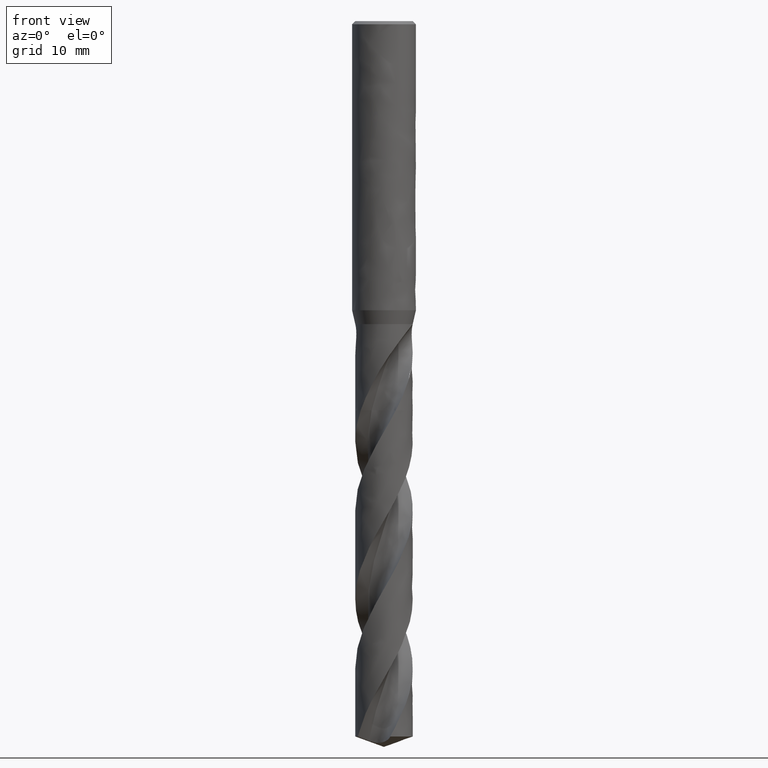
[diagram: clean part render]
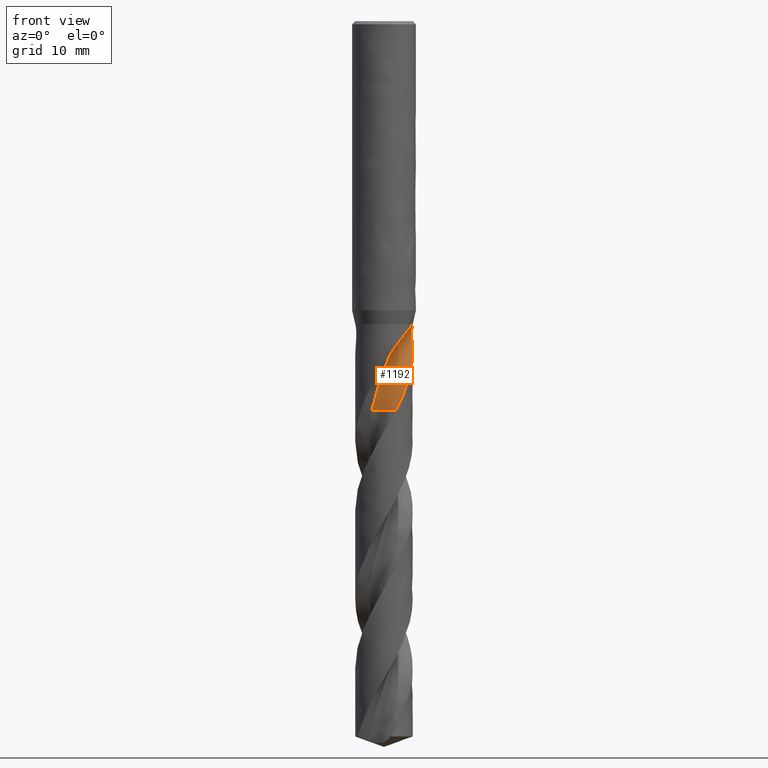
[diagram: same view with one face highlighted and labeled with its STEP entity id]
A machine part, front view. The second image highlights one B-rep face of the part: STEP entity #1192.
In plain terms, the highlighted face is a freeform B-spline surface patch.
Its self-contained STEP definition (entity closure, byte-faithful):
#380 = EDGE_CURVE('', #381, #383, #385, .T.);
#381 = VERTEX_POINT('', #382);
#382 = CARTESIAN_POINT('', (3.60124740460778, -0.15513122104007, -37.98));
#383 = VERTEX_POINT('', #384);
#384 = CARTESIAN_POINT('', (3.59971137676077, 0.0455851293631343, -38.));
#385 = B_SPLINE_CURVE_WITH_KNOTS('', 3, (#386, #387, #388, #389, #390, #391, #392, #393, #394, #395), .UNSPECIFIED., .F., .U., (4, 3, 3, 4), (0., 0.131136358345185, 0.157053486987443, 0.20204320221512), .UNSPECIFIED.);
#386 = CARTESIAN_POINT('', (3.60124740460993, -0.155131220990469, -37.98));
#387 = CARTESIAN_POINT('', (3.60311527526153, -0.111459066935836, -37.980058362043));
#388 = CARTESIAN_POINT('', (3.60360952270209, -0.0676024250436709, -37.9826339362335));
#389 = CARTESIAN_POINT('', (3.60262031122507, -0.0242599004705057, -37.9882193109701));
#390 = CARTESIAN_POINT('', (3.6024248084566, -0.0156939024573071, -37.9893231762703));
#391 = CARTESIAN_POINT('', (3.60217161281427, -0.0071433258072321, -37.9905449051908));
#392 = CARTESIAN_POINT('', (3.60186029604204, 0.00138500222784765, -37.9918879482611));
#393 = CARTESIAN_POINT('', (3.60131987919566, 0.0161893833366736, -37.9942193456203));
#394 = CARTESIAN_POINT('', (3.60060383056858, 0.0309358341315839, -37.9969179812704));
#395 = CARTESIAN_POINT('', (3.59971137676077, 0.0455851293631412, -38.));
#456 = VERTEX_POINT('', #457);
#457 = CARTESIAN_POINT('', (3.57980735671333, -0.38076145921187, -38.));
#464 = EDGE_CURVE('', #465, #456, #467, .T.);
#465 = VERTEX_POINT('', #466);
#466 = CARTESIAN_POINT('', (3.60111464815104, -0.15818298204183, -37.98));
#467 = B_SPLINE_CURVE_WITH_KNOTS('', 3, (#468, #469, #470, #471, #472, #473, #474), .UNSPECIFIED., .F., .U., (4, 3, 4), (0., 0.132107174796412, 0.22474016021993), .UNSPECIFIED.);
#468 = CARTESIAN_POINT('', (3.60111464814985, -0.158182982069038, -37.98));
#469 = CARTESIAN_POINT('', (3.59916874368128, -0.20217565282109, -37.9800587043408));
#470 = CARTESIAN_POINT('', (3.59582825375448, -0.246169494657713, -37.982652016962));
#471 = CARTESIAN_POINT('', (3.59124476467539, -0.289718355296562, -37.9873031926434));
#472 = CARTESIAN_POINT('', (3.5880308417548, -0.320254629946187, -37.9905645771197));
#473 = CARTESIAN_POINT('', (3.58420085577503, -0.350636012580257, -37.9948439714934));
#474 = CARTESIAN_POINT('', (3.57980735671333, -0.38076145921186, -38.));
#476 = EDGE_CURVE('', #381, #465, #477, .T.);
#477 = LINE('', #478, #479);
#478 = CARTESIAN_POINT('', (3.60124740460777, -0.15513122104007, -37.98));
#479 = VECTOR('', #480, 0.00305464719545004);
#480 = DIRECTION('', (-0.000132756456736605, -0.00305176100176038, 0.));
#1137 = VERTEX_POINT('', #1138);
#1138 = CARTESIAN_POINT('', (3.45348750932016, -1.01657465194132, -43.3727678921443));
#1139 = VERTEX_POINT('', #1140);
#1140 = CARTESIAN_POINT('', (3.06370827947733, -1.89042100555989, -45.0522342601964));
#1171 = EDGE_CURVE('', #1139, #1137, #1172, .T.);
#1172 = B_SPLINE_CURVE_WITH_KNOTS('', 3, (#1173, #1174, #1175, #1176, #1177, #1178), .UNSPECIFIED., .F., .U., (4, 1, 1, 4), (45.9977657398036, 46.43625, 47.099625, 47.6772321078557), .UNSPECIFIED.);
#1173 = CARTESIAN_POINT('', (3.06370827947733, -1.89042100555989, -45.0522342601964));
#1174 = CARTESIAN_POINT('', (3.09754633994347, -1.81307925647576, -44.9060728401309));
#1175 = CARTESIAN_POINT('', (3.17196093515906, -1.61463059152777, -44.5387864200655));
#1176 = CARTESIAN_POINT('', (3.24955677938932, -1.307708570142, -43.9789642973814));
#1177 = CARTESIAN_POINT('', (3.37962291056814, -1.10929867842429, -43.5653035947629));
#1178 = CARTESIAN_POINT('', (3.45348750932016, -1.01657465194132, -43.3727678921443));
#1192 = ADVANCED_FACE('', (#1193), #1502, .T.);
#1193 = FACE_OUTER_BOUND('', #1194, .T.);
#1194 = EDGE_LOOP('', (#1195, #1272, #1312, #1313, #1425, #1426, #1427, #1428, #1482));
#1195 = ORIENTED_EDGE('', *, *, #1196, .T.);
#1196 = EDGE_CURVE('', #1197, #1199, #1201, .T.);
#1197 = VERTEX_POINT('', #1198);
#1198 = CARTESIAN_POINT('', (-1.55339180861941, -1.4941882744044, -48.8));
#1199 = VERTEX_POINT('', #1200);
#1200 = CARTESIAN_POINT('', (1.4856584523893, -3.27914912177599, -48.8));
#1201 = B_SPLINE_CURVE_WITH_KNOTS('', 3, (#1202, #1203, #1204, #1205, #1206, #1207, #1208, #1209, #1210, #1211, #1212, #1213, #1214, #1215, #1216, #1217, #1218, #1219, #1220, #1221, #1222, #1223, #1224, #1225, #1226, #1227, #1228, #1229, #1230, #1231, #1232, #1233, #1234, #1235, #1236, #1237, #1238, #1239, #1240, #1241, #1242, #1243, #1244, #1245, #1246, #1247, #1248, #1249, #1250, #1251, #1252, #1253, #1254, #1255, #1256, #1257, #1258, #1259, #1260, #1261, #1262, #1263, #1264, #1265, #1266, #1267, #1268, #1269, #1270, #1271), .UNSPECIFIED., .F., .U., (4, 3, 3, 3, 3, 3, 3, 3, 3, 3, 3, 3, 3, 3, 3, 3, 3, 3, 3, 3, 3, 3, 3, 4), (0., 0.198161325395539, 0.396102672322728, 0.593829154784423, 0.791344830634001, 0.988652777909094, 1.18575515176298, 1.38265322425847, 1.57934740858128, 1.77583726862783, 1.97212151438407, 2.05950590213114, 2.08544527419575, 2.28359250977276, 2.4815201234749, 2.67923315981456, 2.87673561261368, 3.07403050002724, 3.27111992033154, 3.46800509069301, 3.66468637043387, 3.86116326971416, 4.05743444401378, 4.12062223334956), .UNSPECIFIED.);
#1202 = CARTESIAN_POINT('', (-1.55339180861941, -1.4941882744044, -48.8));
#1203 = CARTESIAN_POINT('', (-1.49316110768937, -1.4670706809521, -48.8));
#1204 = CARTESIAN_POINT('', (-1.43162071137666, -1.4426930611038, -48.8));
#1205 = CARTESIAN_POINT('', (-1.36915842104998, -1.42120903223783, -48.8));
#1206 = CARTESIAN_POINT('', (-1.30676546997972, -1.39974885274689, -48.8));
#1207 = CARTESIAN_POINT('', (-1.2433218357042, -1.38113082762273, -48.8));
#1208 = CARTESIAN_POINT('', (-1.17922642725123, -1.36547201980458, -48.8));
#1209 = CARTESIAN_POINT('', (-1.11520059408353, -1.34983020955376, -48.8));
#1210 = CARTESIAN_POINT('', (-1.05039043311696, -1.33710845253099, -48.8));
#1211 = CARTESIAN_POINT('', (-0.985202562755464, -1.32738656493265, -48.8));
#1212 = CARTESIAN_POINT('', (-0.92008419261433, -1.31767504235048, -48.8));
#1213 = CARTESIAN_POINT('', (-0.854452954070395, -1.31093670518178, -48.8));
#1214 = CARTESIAN_POINT('', (-0.788719740783478, -1.3072137397403, -48.8));
#1215 = CARTESIAN_POINT('', (-0.723055659562326, -1.30349468976681, -48.8));
#1216 = CARTESIAN_POINT('', (-0.657153002109911, -1.30277691013836, -48.8));
#1217 = CARTESIAN_POINT('', (-0.591423495299678, -1.30506488518342, -48.8));
#1218 = CARTESIAN_POINT('', (-0.525762471486584, -1.30735047640734, -48.8));
#1219 = CARTESIAN_POINT('', (-0.460137712150983, -1.31264030149708, -48.8));
#1220 = CARTESIAN_POINT('', (-0.394958355441786, -1.32090138099081, -48.8));
#1221 = CARTESIAN_POINT('', (-0.329846558705893, -1.32915389767666, -48.8));
#1222 = CARTESIAN_POINT('', (-0.265044137427836, -1.34038862302187, -48.8));
#1223 = CARTESIAN_POINT('', (-0.200954267083361, -1.35453565893243, -48.8));
#1224 = CARTESIAN_POINT('', (-0.136930761870784, -1.3686680455716, -48.8));
#1225 = CARTESIAN_POINT('', (-0.073485759959988, -1.38573596510345, -48.8));
#1226 = CARTESIAN_POINT('', (-0.0110131756951099, -1.40563344703187, -48.8));
#1227 = CARTESIAN_POINT('', (0.051394512570887, -1.4255102596222, -48.8));
#1228 = CARTESIAN_POINT('', (0.112960762760195, -1.44825181933447, -48.8));
#1229 = CARTESIAN_POINT('', (0.173304117747931, -1.47371722218385, -48.8));
#1230 = CARTESIAN_POINT('', (0.233584327206896, -1.4991559770895, -48.8));
#1231 = CARTESIAN_POINT('', (0.292768505142248, -1.52736532150806, -48.8));
#1232 = CARTESIAN_POINT('', (0.350490719330195, -1.55817083875428, -48.8));
#1233 = CARTESIAN_POINT('', (0.376188249597003, -1.57188524183039, -48.8));
#1234 = CARTESIAN_POINT('', (0.401613526703004, -1.58612243366221, -48.8));
#1235 = CARTESIAN_POINT('', (0.426735354856261, -1.60086494578823, -48.8));
#1236 = CARTESIAN_POINT('', (0.434192573064355, -1.60524114521084, -48.8));
#1237 = CARTESIAN_POINT('', (0.441623649665426, -1.60966219888873, -48.8));
#1238 = CARTESIAN_POINT('', (0.449027781032012, -1.61412762871082, -48.8));
#1239 = CARTESIAN_POINT('', (0.505586905072622, -1.64823842263076, -48.8));
#1240 = CARTESIAN_POINT('', (0.560637660016448, -1.68498454405395, -48.8));
#1241 = CARTESIAN_POINT('', (0.613833188703467, -1.72413446744849, -48.8));
#1242 = CARTESIAN_POINT('', (0.666969756680231, -1.76324099796121, -48.8));
#1243 = CARTESIAN_POINT('', (0.718366630117579, -1.80482798925381, -48.8));
#1244 = CARTESIAN_POINT('', (0.767700690129672, -1.84863399463908, -48.8));
#1245 = CARTESIAN_POINT('', (0.816981266081204, -1.89239250904056, -48.8));
#1246 = CARTESIAN_POINT('', (0.864306611244822, -1.93845676870171, -48.8));
#1247 = CARTESIAN_POINT('', (0.909379847122083, -1.98653780608956, -48.8));
#1248 = CARTESIAN_POINT('', (0.954405075635892, -2.03456763251391, -48.8));
#1249 = CARTESIAN_POINT('', (0.997276998767196, -2.08471020556963, -48.8));
#1250 = CARTESIAN_POINT('', (1.03772724665259, -2.13665164254517, -48.8));
#1251 = CARTESIAN_POINT('', (1.07813498331254, -2.18853849161945, -48.8));
#1252 = CARTESIAN_POINT('', (1.11621032433676, -2.24232851372493, -48.8));
#1253 = CARTESIAN_POINT('', (1.15171542545997, -2.29768570009732, -48.8));
#1254 = CARTESIAN_POINT('', (1.18718355081261, -2.35298523631359, -48.8));
#1255 = CARTESIAN_POINT('', (1.22016053493028, -2.40996363325333, -48.8));
#1256 = CARTESIAN_POINT('', (1.25044080949105, -2.46826570520871, -48.8));
#1257 = CARTESIAN_POINT('', (1.28068970365434, -2.52650735689979, -48.8));
#1258 = CARTESIAN_POINT('', (1.30831024242984, -2.58619076730771, -48.8));
#1259 = CARTESIAN_POINT('', (1.33313060404683, -2.64694465803916, -48.8));
#1260 = CARTESIAN_POINT('', (1.35792526215896, -2.70763563317131, -48.8));
#1261 = CARTESIAN_POINT('', (1.37997688582691, -2.76952052076602, -48.8));
#1262 = CARTESIAN_POINT('', (1.39914857990326, -2.83221514318, -48.8));
#1263 = CARTESIAN_POINT('', (1.41830035180059, -2.89484461676121, -48.8));
#1264 = CARTESIAN_POINT('', (1.43461775775874, -2.95841153712729, -48.8));
#1265 = CARTESIAN_POINT('', (1.44799971039785, -3.0225221031163, -48.8));
#1266 = CARTESIAN_POINT('', (1.46136765120169, -3.08656554088312, -48.8));
#1267 = CARTESIAN_POINT('', (1.47183385699355, -3.15128352684828, -48.8));
#1268 = CARTESIAN_POINT('', (1.47933362445583, -3.21627596679586, -48.8));
#1269 = CARTESIAN_POINT('', (1.48174810904923, -3.23719971486269, -48.8));
#1270 = CARTESIAN_POINT('', (1.48385679949123, -3.25816192008101, -48.8));
#1271 = CARTESIAN_POINT('', (1.48565842112159, -3.27914912446012, -48.8));
#1272 = ORIENTED_EDGE('', *, *, #1273, .F.);
#1273 = EDGE_CURVE('', #1139, #1199, #1274, .T.);
#1274 = B_SPLINE_CURVE_WITH_KNOTS('', 3, (#1275, #1276, #1277, #1278, #1279, #1280, #1281, #1282, #1283, #1284, #1285, #1286, #1287, #1288, #1289, #1290, #1291, #1292, #1293, #1294, #1295, #1296, #1297, #1298, #1299, #1300, #1301, #1302, #1303, #1304, #1305, #1306, #1307, #1308, #1309, #1310, #1311), .UNSPECIFIED., .F., .U., (4, 3, 3, 3, 3, 3, 3, 3, 3, 3, 3, 3, 4), (0., 0.295635985396997, 0.739058378714352, 1.18245643843562, 1.62579449452477, 1.82283654574442, 2.11839024996806, 2.41394728722308, 2.61098054669025, 3.05419718392645, 3.34969436634898, 4.01421400226268, 4.31228855287665), .UNSPECIFIED.);
#1275 = CARTESIAN_POINT('', (3.06370827947733, -1.89042100555989, -45.0522342601964));
#1276 = CARTESIAN_POINT('', (3.03903338288143, -1.93041034379394, -45.1388551818493));
#1277 = CARTESIAN_POINT('', (3.01347780120759, -1.97007507975757, -45.2253804332464));
#1278 = CARTESIAN_POINT('', (2.98703554562784, -2.00938265374117, -45.3117916796775));
#1279 = CARTESIAN_POINT('', (2.947374987262, -2.0683398152244, -45.4413993174304));
#1280 = CARTESIAN_POINT('', (2.9057141178873, -2.1264980295894, -45.5707769248647));
#1281 = CARTESIAN_POINT('', (2.86210677925828, -2.18365399826158, -45.6999227409284));
#1282 = CARTESIAN_POINT('', (2.81850183365988, -2.24080683039786, -45.8290614698847));
#1283 = CARTESIAN_POINT('', (2.77294061981331, -2.29697058509164, -45.9579966447544));
#1284 = CARTESIAN_POINT('', (2.72549709102988, -2.35194932062538, -46.0867254256621));
#1285 = CARTESIAN_POINT('', (2.67805998262648, -2.40692061606383, -46.2154367861182));
#1286 = CARTESIAN_POINT('', (2.62873172844603, -2.46071818787956, -46.3439722814074));
#1287 = CARTESIAN_POINT('', (2.57760096496415, -2.51316001587996, -46.4723242840722));
#1288 = CARTESIAN_POINT('', (2.55487584498287, -2.53646783982374, -46.5293704625715));
#1289 = CARTESIAN_POINT('', (2.53179293449801, -2.55951004813526, -46.5863844037391));
#1290 = CARTESIAN_POINT('', (2.50836078808814, -2.58227151105027, -46.6433651244886));
#1291 = CARTESIAN_POINT('', (2.47321368305913, -2.61641262273908, -46.7288334952379));
#1292 = CARTESIAN_POINT('', (2.43727660642795, -2.64992531709488, -46.8142340350793));
#1293 = CARTESIAN_POINT('', (2.4006064297688, -2.68273904235069, -46.8995823477541));
#1294 = CARTESIAN_POINT('', (2.3639358395711, -2.7155531376549, -46.9849316229227));
#1295 = CARTESIAN_POINT('', (2.32652801531215, -2.74767135678469, -47.070237678052));
#1296 = CARTESIAN_POINT('', (2.28847100038685, -2.77901070174053, -47.1555342482093));
#1297 = CARTESIAN_POINT('', (2.26310027070988, -2.79990309308254, -47.2123972530477));
#1298 = CARTESIAN_POINT('', (2.23744231797189, -2.82044868431367, -47.2692613064478));
#1299 = CARTESIAN_POINT('', (2.21152418528839, -2.84062682833992, -47.3261353792881));
#1300 = CARTESIAN_POINT('', (2.15322261913409, -2.88601657200638, -47.4540708120082));
#1301 = CARTESIAN_POINT('', (2.09357885084248, -2.92956851858169, -47.5820667086548));
#1302 = CARTESIAN_POINT('', (2.03268167599991, -2.9712295778102, -47.7100615000785));
#1303 = CARTESIAN_POINT('', (1.99208089057886, -2.99900544311961, -47.7953969704848));
#1304 = CARTESIAN_POINT('', (1.95091663935712, -3.02594522730658, -47.8807424490231));
#1305 = CARTESIAN_POINT('', (1.9092088251173, -3.05203565871931, -47.9660759863926));
#1306 = CARTESIAN_POINT('', (1.81541550598585, -3.11070831285794, -48.1579756543324));
#1307 = CARTESIAN_POINT('', (1.71884224107608, -3.16509561734494, -48.3498945849978));
#1308 = CARTESIAN_POINT('', (1.6200065647208, -3.21489948991588, -48.541770151366));
#1309 = CARTESIAN_POINT('', (1.57567318731245, -3.23723933682651, -48.627837168995));
#1310 = CARTESIAN_POINT('', (1.5308702659685, -3.25866535891637, -48.7139281927228));
#1311 = CARTESIAN_POINT('', (1.4856584523893, -3.27914912177599, -48.8));
#1312 = ORIENTED_EDGE('', *, *, #1171, .T.);
#1313 = ORIENTED_EDGE('', *, *, #1314, .T.);
#1314 = EDGE_CURVE('', #1137, #383, #1315, .T.);
#1315 = B_SPLINE_CURVE_WITH_KNOTS('', 3, (#1316, #1317, #1318, #1319, #1320, #1321, #1322, #1323, #1324, #1325, #1326, #1327, #1328, #1329, #1330, #1331, #1332, #1333, #1334, #1335, #1336, #1337, #1338, #1339, #1340, #1341, #1342, #1343, #1344, #1345, #1346, #1347, #1348, #1349, #1350, #1351, #1352, #1353, #1354, #1355, #1356, #1357, #1358, #1359, #1360, #1361, #1362, #1363, #1364, #1365, #1366, #1367, #1368, #1369, #1370, #1371, #1372, #1373, #1374, #1375, #1376, #1377, #1378, #1379, #1380, #1381, #1382, #1383, #1384, #1385, #1386, #1387, #1388, #1389, #1390, #1391, #1392, #1393, #1394, #1395, #1396, #1397, #1398, #1399, #1400, #1401, #1402, #1403, #1404, #1405, #1406, #1407, #1408, #1409, #1410, #1411, #1412, #1413, #1414, #1415, #1416, #1417, #1418, #1419, #1420, #1421, #1422, #1423, #1424), .UNSPECIFIED., .F., .U., (4, 3, 3, 3, 3, 3, 3, 3, 3, 3, 3, 3, 3, 3, 3, 3, 3, 3, 3, 3, 3, 3, 3, 3, 3, 3, 3, 3, 3, 3, 3, 3, 3, 3, 3, 3, 4), (0., 0.131307096041016, 0.426573275159126, 0.72166918210154, 0.918414868978559, 1.11510087061255, 1.31172997177353, 1.50830386174755, 1.70482445343302, 1.83593392592466, 1.87483867487829, 2.16974128983139, 2.46439770129819, 2.75882509157484, 3.05305410529972, 3.34714371914707, 3.64116460524708, 3.93523915499994, 4.13169385243683, 4.32826559424835, 4.52502269130243, 4.7220566444108, 4.91949069915633, 4.97793549827289, 5.10980774858142, 5.24192539530663, 5.37432044586173, 5.50700106121633, 5.59522568120055, 5.68349510761535, 5.77178109157317, 5.86004960556423, 5.94826556939349, 6.03639830408961, 6.12442577325366, 6.25661314318445, 6.36610955729825), .UNSPECIFIED.);
#1316 = CARTESIAN_POINT('', (3.45348750932016, -1.01657465194132, -43.3727678921443));
#1317 = CARTESIAN_POINT('', (3.46025805105062, -0.99357390010002, -43.3361502277892));
#1318 = CARTESIAN_POINT('', (3.46683335814022, -0.970387649030024, -43.2996119642372));
#1319 = CARTESIAN_POINT('', (3.47320000901122, -0.947038382223542, -43.2631427215839));
#1320 = CARTESIAN_POINT('', (3.48751649862326, -0.894533612846829, -43.1811354709614));
#1321 = CARTESIAN_POINT('', (3.50077743882958, -0.841194891082645, -43.0994673868125));
#1322 = CARTESIAN_POINT('', (3.51285811462934, -0.787291474920695, -43.0180095398297));
#1323 = CARTESIAN_POINT('', (3.52493182382372, -0.733419143429447, -42.9365986674272));
#1324 = CARTESIAN_POINT('', (3.53582851336521, -0.678973320844165, -42.8553826958132));
#1325 = CARTESIAN_POINT('', (3.54546446119259, -0.624244947452802, -42.7742181323957));
#1326 = CARTESIAN_POINT('', (3.55188891890077, -0.587756568043843, -42.7201042751582));
#1327 = CARTESIAN_POINT('', (3.55775446085526, -0.551139507139547, -42.6660078119217));
#1328 = CARTESIAN_POINT('', (3.56304716595132, -0.514485075786199, -42.611883649399));
#1329 = CARTESIAN_POINT('', (3.56833826543968, -0.477841764008981, -42.5577759061119));
#1330 = CARTESIAN_POINT('', (3.57305715131738, -0.441159066898206, -42.5036357544886));
#1331 = CARTESIAN_POINT('', (3.57719921090705, -0.404531587748377, -42.4494172426232));
#1332 = CARTESIAN_POINT('', (3.58134007221546, -0.367914704781658, -42.3952144159562));
#1333 = CARTESIAN_POINT('', (3.58490481661908, -0.331350066214744, -42.3409289715885));
#1334 = CARTESIAN_POINT('', (3.58789862033755, -0.294929635981179, -42.2865186906651));
#1335 = CARTESIAN_POINT('', (3.59089158343042, -0.258519432184955, -42.2321236875219));
#1336 = CARTESIAN_POINT('', (3.59331421733183, -0.222250241625752, -42.1775993520042));
#1337 = CARTESIAN_POINT('', (3.59518081145052, -0.18621206453402, -42.1229070970333));
#1338 = CARTESIAN_POINT('', (3.59704689946806, -0.150183658695032, -42.0682296711101));
#1339 = CARTESIAN_POINT('', (3.59835744748188, -0.114382802391206, -42.0133794699357));
#1340 = CARTESIAN_POINT('', (3.59913531793066, -0.0788984361327664, -41.9583212835673));
#1341 = CARTESIAN_POINT('', (3.5996542772078, -0.0552249040008753, -41.9215890016766));
#1342 = CARTESIAN_POINT('', (3.59993634067253, -0.0316909909008491, -41.8847621520572));
#1343 = CARTESIAN_POINT('', (3.59999037437158, -0.00832492834586729, -41.8478299144285));
#1344 = CARTESIAN_POINT('', (3.60000640805288, -0.00139140340323258, -41.8368708326327));
#1345 = CARTESIAN_POINT('', (3.60000237566057, 0.00552740702182121, -41.8259023789773));
#1346 = CARTESIAN_POINT('', (3.59997853826305, 0.0124307701068321, -41.8149242867519));
#1347 = CARTESIAN_POINT('', (3.59979784796043, 0.0647590817010476, -41.731709044614));
#1348 = CARTESIAN_POINT('', (3.59847556088874, 0.11620735156318, -41.6479257643461));
#1349 = CARTESIAN_POINT('', (3.59614958303702, 0.166457731639888, -41.5634713358267));
#1350 = CARTESIAN_POINT('', (3.59382554705976, 0.216666159498693, -41.4790874152435));
#1351 = CARTESIAN_POINT('', (3.59049887521589, 0.265694606025013, -41.3940083065925));
#1352 = CARTESIAN_POINT('', (3.58634826133578, 0.313219010300791, -41.3081529816153));
#1353 = CARTESIAN_POINT('', (3.58220087351319, 0.360706476314902, -41.2223643875422));
#1354 = CARTESIAN_POINT('', (3.57722930518026, 0.40670952664682, -41.1357682101254));
#1355 = CARTESIAN_POINT('', (3.57165326456314, 0.450880203308426, -41.0483050623343));
#1356 = CARTESIAN_POINT('', (3.56608098091887, 0.495021119061859, -40.9609008446504));
#1357 = CARTESIAN_POINT('', (3.55990246532076, 0.537354172699171, -40.8725898996409));
#1358 = CARTESIAN_POINT('', (3.5533761958116, 0.577509836314075, -40.7833492220133));
#1359 = CARTESIAN_POINT('', (3.54685301831963, 0.617646474971112, -40.6941508248507));
#1360 = CARTESIAN_POINT('', (3.5399780991859, 0.655635023173854, -40.6039697256332));
#1361 = CARTESIAN_POINT('', (3.53305101612818, 0.691050300221069, -40.5128235280404));
#1362 = CARTESIAN_POINT('', (3.52612555190632, 0.726457300837908, -40.4216986310054));
#1363 = CARTESIAN_POINT('', (3.51914276455163, 0.75932074742192, -40.3295340127943));
#1364 = CARTESIAN_POINT('', (3.51244430635013, 0.789135599747322, -40.2364127485979));
#1365 = CARTESIAN_POINT('', (3.50574462556971, 0.818955893774183, -40.1432744882375));
#1366 = CARTESIAN_POINT('', (3.49932185939417, 0.8457635381748, -40.049074784762));
#1367 = CARTESIAN_POINT('', (3.4935621440144, 0.868920908891889, -39.9539988516265));
#1368 = CARTESIAN_POINT('', (3.4897144015178, 0.884391048220446, -39.8904839582317));
#1369 = CARTESIAN_POINT('', (3.48616046622101, 0.898242077929175, -39.8265275873131));
#1370 = CARTESIAN_POINT('', (3.48302657412833, 0.910233972073067, -39.7622263803936));
#1371 = CARTESIAN_POINT('', (3.47989081491592, 0.922233010783971, -39.6978868639062));
#1372 = CARTESIAN_POINT('', (3.47717298002899, 0.932382340160816, -39.6331437236892));
#1373 = CARTESIAN_POINT('', (3.47500689268444, 0.94038667355278, -39.568146631368));
#1374 = CARTESIAN_POINT('', (3.47283876285076, 0.948398554546162, -39.5030882507268));
#1375 = CARTESIAN_POINT('', (3.47122129415809, 0.954271920363597, -39.4376965396672));
#1376 = CARTESIAN_POINT('', (3.47029326675291, 0.957634921423312, -39.3722036934572));
#1377 = CARTESIAN_POINT('', (3.46936393352441, 0.961002654547172, -39.3066186925485));
#1378 = CARTESIAN_POINT('', (3.46912582499308, 0.961858028637826, -39.2408227737018));
#1379 = CARTESIAN_POINT('', (3.46971335147408, 0.959733951990098, -39.1751817747617));
#1380 = CARTESIAN_POINT('', (3.47030207099974, 0.957605562143904, -39.1094074837126));
#1381 = CARTESIAN_POINT('', (3.47172348442445, 0.952479456935465, -39.0436335780092));
#1382 = CARTESIAN_POINT('', (3.47408395383562, 0.943790592081677, -38.9784410492291));
#1383 = CARTESIAN_POINT('', (3.4747827044171, 0.941218498014192, -38.9591426346098));
#1384 = CARTESIAN_POINT('', (3.47556372128881, 0.938332515204317, -38.9398859387404));
#1385 = CARTESIAN_POINT('', (3.47642874043764, 0.93511668398075, -38.9206910722782));
#1386 = CARTESIAN_POINT('', (3.47838053124607, 0.927860625161581, -38.8773806276707));
#1387 = CARTESIAN_POINT('', (3.4807642967467, 0.91891512087323, -38.8343268520147));
#1388 = CARTESIAN_POINT('', (3.48358551654376, 0.908092478179713, -38.7918160814615));
#1389 = CARTESIAN_POINT('', (3.48641198624917, 0.89724969601235, -38.7492262041155));
#1390 = CARTESIAN_POINT('', (3.48968447395709, 0.884497620795413, -38.7070914127935));
#1391 = CARTESIAN_POINT('', (3.49337799773733, 0.869660948257852, -38.6657914910192));
#1392 = CARTESIAN_POINT('', (3.497079276709, 0.854793123562448, -38.6244048529222));
#1393 = CARTESIAN_POINT('', (3.50121454555365, 0.837787624719165, -38.5837449712347));
#1394 = CARTESIAN_POINT('', (3.50571272965531, 0.818521995509433, -38.5442961770692));
#1395 = CARTESIAN_POINT('', (3.51022061595531, 0.799214811985401, -38.5047622952291));
#1396 = CARTESIAN_POINT('', (3.51510933178897, 0.777565893270143, -38.4663115429722));
#1397 = CARTESIAN_POINT('', (3.52024666464446, 0.753567130426735, -38.4295191065077));
#1398 = CARTESIAN_POINT('', (3.52366268165415, 0.737609398196654, -38.4050543516775));
#1399 = CARTESIAN_POINT('', (3.52719490196793, 0.720579791073002, -38.3812683963392));
#1400 = CARTESIAN_POINT('', (3.53078847857156, 0.702518839310605, -38.3583395750073));
#1401 = CARTESIAN_POINT('', (3.5343838802365, 0.684448714975049, -38.3353991088688));
#1402 = CARTESIAN_POINT('', (3.53804793626968, 0.665308499144381, -38.3132702342722));
#1403 = CARTESIAN_POINT('', (3.54171465176186, 0.645180072146815, -38.2921249530636));
#1404 = CARTESIAN_POINT('', (3.54538205505504, 0.625047869467117, -38.2709757054318));
#1405 = CARTESIAN_POINT('', (3.5490599231932, 0.603882470234202, -38.2507644458147));
#1406 = CARTESIAN_POINT('', (3.55267506320794, 0.581807438299338, -38.2316419502978));
#1407 = CARTESIAN_POINT('', (3.55628948786139, 0.559736774555855, -38.2125232387265));
#1408 = CARTESIAN_POINT('', (3.55984909890544, 0.536706687271473, -38.1944496356864));
#1409 = CARTESIAN_POINT('', (3.56327916167846, 0.512875828978293, -38.1775372657111));
#1410 = CARTESIAN_POINT('', (3.56670718238297, 0.489059158252145, -38.1606349644198));
#1411 = CARTESIAN_POINT('', (3.57001325567011, 0.464389138433453, -38.1448541152002));
#1412 = CARTESIAN_POINT('', (3.57312715742087, 0.439047055453992, -38.1302679791279));
#1413 = CARTESIAN_POINT('', (3.57623812129813, 0.413728881974657, -38.1156956046404));
#1414 = CARTESIAN_POINT('', (3.57916381032383, 0.387685535346042, -38.102283554289));
#1415 = CARTESIAN_POINT('', (3.58184345013973, 0.3611059383228, -38.0900611709159));
#1416 = CARTESIAN_POINT('', (3.5845198894001, 0.334558087908043, -38.0778533859289));
#1417 = CARTESIAN_POINT('', (3.58695616352668, 0.307422465893628, -38.06680713328));
#1418 = CARTESIAN_POINT('', (3.58910379988383, 0.279881963799188, -38.0569131904102));
#1419 = CARTESIAN_POINT('', (3.59232882048609, 0.238525480726236, -38.0420558475986));
#1420 = CARTESIAN_POINT('', (3.59491021243288, 0.196122637931361, -38.0297533284577));
#1421 = CARTESIAN_POINT('', (3.59673769118172, 0.153225261731758, -38.0198550699199));
#1422 = CARTESIAN_POINT('', (3.59825146946457, 0.11769154265401, -38.011655921874));
#1423 = CARTESIAN_POINT('', (3.59925370798556, 0.0817257638188242, -38.0050801402832));
#1424 = CARTESIAN_POINT('', (3.59971137676077, 0.0455851293631322, -38.));
#1425 = ORIENTED_EDGE('', *, *, #380, .F.);
#1426 = ORIENTED_EDGE('', *, *, #476, .T.);
#1427 = ORIENTED_EDGE('', *, *, #464, .T.);
#1428 = ORIENTED_EDGE('', *, *, #1429, .F.);
#1429 = EDGE_CURVE('', #1430, #456, #1432, .T.);
#1430 = VERTEX_POINT('', #1431);
#1431 = CARTESIAN_POINT('', (1.94873892659861, -3.02694839664625, -40.125873315949));
#1432 = B_SPLINE_CURVE_WITH_KNOTS('', 3, (#1433, #1434, #1435, #1436, #1437, #1438, #1439, #1440, #1441, #1442, #1443, #1444, #1445, #1446, #1447, #1448, #1449, #1450, #1451, #1452, #1453, #1454, #1455, #1456, #1457, #1458, #1459, #1460, #1461, #1462, #1463, #1464, #1465, #1466, #1467, #1468, #1469, #1470, #1471, #1472, #1473, #1474, #1475, #1476, #1477, #1478, #1479, #1480, #1481), .UNSPECIFIED., .F., .U., (4, 3, 3, 3, 3, 3, 3, 3, 3, 3, 3, 3, 3, 3, 3, 3, 4), (0., 0.298338295278962, 0.59681993512883, 0.895415687635324, 1.1940997190107, 1.49283571870587, 1.79158738460295, 2.09032196816642, 2.38899793747596, 2.68756006210626, 2.88582315615973, 3.08399794506888, 3.28205383003747, 3.47995007704511, 3.6776320958895, 3.8091263069416, 3.92958793209061), .UNSPECIFIED.);
#1433 = CARTESIAN_POINT('', (1.94873892659861, -3.02694839664625, -40.125873315949));
#1434 = CARTESIAN_POINT('', (2.00266091172589, -2.99223360879806, -40.0498678587976));
#1435 = CARTESIAN_POINT('', (2.05682100153925, -2.95532615622564, -39.9749889717848));
#1436 = CARTESIAN_POINT('', (2.11095033454795, -2.91614277515212, -39.9013397732291));
#1437 = CARTESIAN_POINT('', (2.16510567543474, -2.87694056738073, -39.8276551879566));
#1438 = CARTESIAN_POINT('', (2.21926472780225, -2.8354348571398, -39.7551494279027));
#1439 = CARTESIAN_POINT('', (2.27313800361959, -2.79156651658174, -39.6839295500813));
#1440 = CARTESIAN_POINT('', (2.32703187575445, -2.74768140469769, -39.6126824441549));
#1441 = CARTESIAN_POINT('', (2.38067965340864, -2.70139921985274, -39.5426691587379));
#1442 = CARTESIAN_POINT('', (2.43378110672117, -2.65267968751733, -39.4740160784954));
#1443 = CARTESIAN_POINT('', (2.48689825930671, -2.60394575140969, -39.4053427011918));
#1444 = CARTESIAN_POINT('', (2.53951247931017, -2.55273271280845, -39.3379741950669));
#1445 = CARTESIAN_POINT('', (2.59131067271266, -2.49902160804693, -39.2720611799397));
#1446 = CARTESIAN_POINT('', (2.64311787853227, -2.44530115803901, -39.206136696544));
#1447 = CARTESIAN_POINT('', (2.69415437778507, -2.38903397109871, -39.1416056503736));
#1448 = CARTESIAN_POINT('', (2.74408835576993, -2.33023155410098, -39.0786391161454));
#1449 = CARTESIAN_POINT('', (2.79402495237384, -2.27142605340882, -39.0156692798497));
#1450 = CARTESIAN_POINT('', (2.84290999776242, -2.21002471321929, -38.9541992397386));
#1451 = CARTESIAN_POINT('', (2.89040048738971, -2.14606267907005, -38.8944458929069));
#1452 = CARTESIAN_POINT('', (2.93788826155637, -2.08210430220856, -38.8346959627142));
#1453 = CARTESIAN_POINT('', (2.98403674913054, -2.01551092265868, -38.7765923795981));
#1454 = CARTESIAN_POINT('', (3.02848739804503, -1.94634634119481, -38.7204121579351));
#1455 = CARTESIAN_POINT('', (3.07292932536596, -1.87719533040727, -38.6642429593072));
#1456 = CARTESIAN_POINT('', (3.11573352385011, -1.80538089908526, -38.6099198713354));
#1457 = CARTESIAN_POINT('', (3.15652115648797, -1.73100380954052, -38.5578013175748));
#1458 = CARTESIAN_POINT('', (3.19729324232786, -1.65665506990262, -38.5057026295572));
#1459 = CARTESIAN_POINT('', (3.2361143638253, -1.57962732722737, -38.4557226353836));
#1460 = CARTESIAN_POINT('', (3.272580227224, -1.50007288369017, -38.408333789832));
#1461 = CARTESIAN_POINT('', (3.29679573987052, -1.44724397868114, -38.3768647642337));
#1462 = CARTESIAN_POINT('', (3.3199972549328, -1.3932483263603, -38.3465080034662));
#1463 = CARTESIAN_POINT('', (3.34205890536621, -1.33814882321153, -38.3174406306539));
#1464 = CARTESIAN_POINT('', (3.36411072967825, -1.28307386103747, -38.288386204268));
#1465 = CARTESIAN_POINT('', (3.38504482185723, -1.22684257371967, -38.2605914671796));
#1466 = CARTESIAN_POINT('', (3.40472881095545, -1.16953910744785, -38.2342751712208));
#1467 = CARTESIAN_POINT('', (3.42440098975285, -1.11227002298606, -38.2079746649157));
#1468 = CARTESIAN_POINT('', (3.44284659738224, -1.05386457972798, -38.1831203129941));
#1469 = CARTESIAN_POINT('', (3.45992673315735, -0.994438032852273, -38.1599856253159));
#1470 = CARTESIAN_POINT('', (3.47699310191894, -0.935059385248892, -38.1368695847705));
#1471 = CARTESIAN_POINT('', (3.49271897097678, -0.874579453819754, -38.1154380581665));
#1472 = CARTESIAN_POINT('', (3.506960097214, -0.813161039738582, -38.0960369035704));
#1473 = CARTESIAN_POINT('', (3.52118580703802, -0.751809112790124, -38.076656751261));
#1474 = CARTESIAN_POINT('', (3.53395303865521, -0.689415910013423, -38.0592689980027));
#1475 = CARTESIAN_POINT('', (3.54511620117399, -0.626219705992793, -38.0443142775511));
#1476 = CARTESIAN_POINT('', (3.55254171846096, -0.584182827586964, -38.0343666901136));
#1477 = CARTESIAN_POINT('', (3.55926617357597, -0.541744309022294, -38.0254858587319));
#1478 = CARTESIAN_POINT('', (3.56524835429407, -0.499003178550431, -38.017830714791));
#1479 = CARTESIAN_POINT('', (3.57072861996867, -0.459848100953085, -38.0108178503273));
#1480 = CARTESIAN_POINT('', (3.57559119653335, -0.42040055834912, -38.0048269549851));
#1481 = CARTESIAN_POINT('', (3.57980735671333, -0.380761459211864, -38.));
#1482 = ORIENTED_EDGE('', *, *, #1483, .F.);
#1483 = EDGE_CURVE('', #1197, #1430, #1484, .T.);
#1484 = B_SPLINE_CURVE_WITH_KNOTS('', 3, (#1485, #1486, #1487, #1488, #1489, #1490, #1491, #1492, #1493, #1494, #1495, #1496, #1497, #1498, #1499, #1500, #1501), .UNSPECIFIED., .F., .U., (4, 1, 1, 1, 1, 1, 1, 1, 1, 1, 1, 1, 1, 1, 4), (42.25, 42.456, 43.119375, 43.78275, 44.446125, 45.1095, 45.772875, 46.43625, 47.099625, 47.763, 48.426375, 49.08975, 49.753125, 50.4165, 50.924126684051), .UNSPECIFIED.);
#1485 = CARTESIAN_POINT('', (-1.55339180861941, -1.4941882744044, -48.8));
#1486 = CARTESIAN_POINT('', (-1.53754596506932, -1.51154261736665, -48.7313333333333));
#1487 = CARTESIAN_POINT('', (-1.46945825965728, -1.58373567030231, -48.4415416666667));
#1488 = CARTESIAN_POINT('', (-1.34063645647854, -1.70295642549486, -47.930625));
#1489 = CARTESIAN_POINT('', (-1.15735993505891, -1.83920130660442, -47.26725));
#1490 = CARTESIAN_POINT('', (-0.961227160645679, -1.95831660810223, -46.603875));
#1491 = CARTESIAN_POINT('', (-0.747905505006778, -2.04419859571092, -45.9405));
#1492 = CARTESIAN_POINT('', (-0.523960373380472, -2.09347841781345, -45.277125));
#1493 = CARTESIAN_POINT('', (-0.295169240814114, -2.10215019309523, -44.61375));
#1494 = CARTESIAN_POINT('', (-0.0730499463583503, -2.08091799792933, -43.950375));
#1495 = CARTESIAN_POINT('', (0.146752701703575, -2.1392669041797, -43.287));
#1496 = CARTESIAN_POINT('', (0.393035942143742, -2.25296692373004, -42.623625));
#1497 = CARTESIAN_POINT('', (0.688171707077305, -2.42015709797418, -41.96025));
#1498 = CARTESIAN_POINT('', (1.05423482178995, -2.62640963139132, -41.296875));
#1499 = CARTESIAN_POINT('', (1.47451031392391, -2.83664780781425, -40.6854161053163));
#1500 = CARTESIAN_POINT('', (1.79756985680884, -2.97074780174832, -40.2950822106327));
#1501 = CARTESIAN_POINT('', (1.94873892659861, -3.02694839664625, -40.125873315949));
#1502 = (
   BOUNDED_SURFACE ()
   B_SPLINE_SURFACE (3, 2, ((#1503, #1504, #1505, #1506, #1507), (#1508, #1509, #1510, #1511, #1512), (#1513, #1514, #1515, #1516, #1517), (#1518, #1519, #1520, #1521, #1522), (#1523, #1524, #1525, #1526, #1527), (#1528, #1529, #1530, #1531, #1532), (#1533, #1534, #1535, #1536, #1537), (#1538, #1539, #1540, #1541, #1542), (#1543, #1544, #1545, #1546, #1547), (#1548, #1549, #1550, #1551, #1552), (#1553, #1554, #1555, #1556, #1557), (#1558, #1559, #1560, #1561, #1562), (#1563, #1564, #1565, #1566, #1567), (#1568, #1569, #1570, #1571, #1572), (#1573, #1574, #1575, #1576, #1577), (#1578, #1579, #1580, #1581, #1582), (#1583, #1584, #1585, #1586, #1587), (#1588, #1589, #1590, #1591, #1592), (#1593, #1594, #1595, #1596, #1597)), .UNSPECIFIED., .F., .F., .U.)
   B_SPLINE_SURFACE_WITH_KNOTS ((4, 1, 1, 1, 1, 1, 1, 1, 1, 1, 1, 1, 1, 1, 1, 1, 4), (3, 2, 3), (42.2499999999998, 42.456, 43.119375, 43.78275, 44.446125, 45.1095, 45.772875, 46.43625, 47.099625, 47.763, 48.426375, 49.08975, 49.753125, 50.4165, 51.079875, 51.74325, 53.07), (0., 0.5, 1.), .UNSPECIFIED.)
   GEOMETRIC_REPRESENTATION_ITEM ()
   RATIONAL_B_SPLINE_SURFACE (((1., 0.887010833178222, 1., 0.887010833178222, 1.), (1., 0.887010833178222, 1., 0.887010833178222, 1.), (1., 0.887010833178222, 1., 0.887010833178222, 1.), (1., 0.887010833178222, 1., 0.887010833178222, 1.), (1., 0.887010833178222, 1., 0.887010833178222, 1.), (1., 0.887010833178222, 1., 0.887010833178222, 1.), (1., 0.887010833178222, 1., 0.887010833178222, 1.), (1., 0.887010833178222, 1., 0.887010833178222, 1.), (1., 0.887010833178222, 1., 0.887010833178222, 1.), (1., 0.887010833178221, 1., 0.887010833178221, 1.), (1., 0.887010833178222, 1., 0.887010833178222, 1.), (1., 0.887010833178222, 1., 0.887010833178222, 1.), (1., 0.887010833178222, 1., 0.887010833178222, 1.), (1., 0.887010833178222, 1., 0.887010833178222, 1.), (1., 0.887010833178222, 1., 0.887010833178222, 1.), (1., 0.887010833178222, 1., 0.887010833178222, 1.), (1., 0.887010833178222, 1., 0.887010833178222, 1.), (1., 0.887010833178222, 1., 0.887010833178222, 1.), (1., 0.887010833178222, 1., 0.887010833178222, 1.)))
   REPRESENTATION_ITEM ('')
   SURFACE ()
);
#1503 = CARTESIAN_POINT('', (1.48766536816761, -3.30424335152374, -48.8000000000002));
#1504 = CARTESIAN_POINT('', (1.40455265261697, -2.18281923053151, -48.8000000000002));
#1505 = CARTESIAN_POINT('', (0.438264296190203, -1.6076787304244, -48.8000000000002));
#1506 = CARTESIAN_POINT('', (-0.528024060236566, -1.03253823031729, -48.8000000000002));
#1507 = CARTESIAN_POINT('', (-1.55339180861947, -1.49418827440434, -48.8000000000002));
#1508 = CARTESIAN_POINT('', (1.52410118751425, -3.28896452486567, -48.7313333333335));
#1509 = CARTESIAN_POINT('', (1.42874202124863, -2.16812864869248, -48.7313333333335));
#1510 = CARTESIAN_POINT('', (0.455911251208869, -1.60335725709084, -48.7313333333335));
#1511 = CARTESIAN_POINT('', (-0.516919518830889, -1.0385858654892, -48.7313333333335));
#1512 = CARTESIAN_POINT('', (-1.53754596506936, -1.51154261736661, -48.7313333333335));
#1513 = CARTESIAN_POINT('', (1.67689875372819, -3.22196975881169, -48.4415416666668));
#1514 = CARTESIAN_POINT('', (1.5298727085008, -2.10445262754055, -48.4415416666667));
#1515 = CARTESIAN_POINT('', (0.530125590819777, -1.58390781933655, -48.4415416666668));
#1516 = CARTESIAN_POINT('', (-0.469621526861251, -1.06336301113254, -48.4415416666667));
#1517 = CARTESIAN_POINT('', (-1.4694582596573, -1.58373567030229, -48.4415416666668));
#1518 = CARTESIAN_POINT('', (1.93849130570513, -3.08539722743947, -47.930625));
#1519 = CARTESIAN_POINT('', (1.70068868300981, -1.97994102011638, -47.930625));
#1520 = CARTESIAN_POINT('', (0.658753990028641, -1.54067389269601, -47.930625));
#1521 = CARTESIAN_POINT('', (-0.383180702952531, -1.10140676527565, -47.930625));
#1522 = CARTESIAN_POINT('', (-1.34063645647854, -1.70295642549486, -47.930625));
#1523 = CARTESIAN_POINT('', (2.25782294780353, -2.87222794104251, -47.26725));
#1524 = CARTESIAN_POINT('', (1.9042771897676, -1.79504042811322, -47.26725));
#1525 = CARTESIAN_POINT('', (0.819111320487724, -1.46679878361021, -47.26725));
#1526 = CARTESIAN_POINT('', (-0.266054548792157, -1.1385571391072, -47.26725));
#1527 = CARTESIAN_POINT('', (-1.15735993505891, -1.83920130660442, -47.26725));
#1528 = CARTESIAN_POINT('', (2.55730033230272, -2.6290191599329, -46.603875));
#1529 = CARTESIAN_POINT('', (2.09061277260196, -1.59096721253532, -46.603875));
#1530 = CARTESIAN_POINT('', (0.972609410430532, -1.37785314437287, -46.603875));
#1531 = CARTESIAN_POINT('', (-0.145393951740893, -1.16473907621043, -46.603875));
#1532 = CARTESIAN_POINT('', (-0.961227160645679, -1.95831660810223, -46.603875));
#1533 = CARTESIAN_POINT('', (2.81387495055484, -2.33980717072272, -45.9405));
#1534 = CARTESIAN_POINT('', (2.24167364827446, -1.35885899967269, -45.9405));
#1535 = CARTESIAN_POINT('', (1.10992676477988, -1.26493010998454, -45.9405));
#1536 = CARTESIAN_POINT('', (-0.0218201187147045, -1.17100122029638, -45.9405));
#1537 = CARTESIAN_POINT('', (-0.747905505006778, -2.04419859571092, -45.9405));
#1538 = CARTESIAN_POINT('', (3.01850122854012, -2.01308283179101, -45.277125));
#1539 = CARTESIAN_POINT('', (2.35195314681918, -1.1056907333425, -45.277125));
#1540 = CARTESIAN_POINT('', (1.22634478103328, -1.13123623089992, -45.277125));
#1541 = CARTESIAN_POINT('', (0.100736415247388, -1.15678172845734, -45.277125));
#1542 = CARTESIAN_POINT('', (-0.523960373380472, -2.09347841781345, -45.277125));
#1543 = CARTESIAN_POINT('', (3.16157038066712, -1.65572931298149, -44.61375));
#1544 = CARTESIAN_POINT('', (2.41537498914016, -0.837358253754402, -44.61375));
#1545 = CARTESIAN_POINT('', (1.31700456949374, -0.979207378398432, -44.61375));
#1546 = CARTESIAN_POINT('', (0.218634149847322, -1.12105650304246, -44.61375));
#1547 = CARTESIAN_POINT('', (-0.295169240814114, -2.10215019309523, -44.61375));
#1548 = CARTESIAN_POINT('', (3.25351948571402, -1.29203451121014, -43.950375));
#1549 = CARTESIAN_POINT('', (2.44191056034866, -0.569959269345056, -43.950375));
#1550 = CARTESIAN_POINT('', (1.38490139472264, -0.820625035714983, -43.950375));
#1551 = CARTESIAN_POINT('', (0.327892229096621, -1.07129080208491, -43.950375));
#1552 = CARTESIAN_POINT('', (-0.0730499463583505, -2.08091799792933, -43.950375));
#1553 = CARTESIAN_POINT('', (3.47016347037453, -0.976996037793691, -43.287));
#1554 = CARTESIAN_POINT('', (2.56194363579479, -0.323793722334666, -43.287));
#1555 = CARTESIAN_POINT('', (1.50593812761066, -0.693102400177223, -43.287));
#1556 = CARTESIAN_POINT('', (0.449932619426514, -1.06241107801978, -43.287));
#1557 = CARTESIAN_POINT('', (0.146752701703575, -2.1392669041797, -43.287));
#1558 = CARTESIAN_POINT('', (3.78941732022949, -0.651320326461704, -42.623625));
#1559 = CARTESIAN_POINT('', (2.75353614648998, -0.059202282990528, -42.623625));
#1560 = CARTESIAN_POINT('', (1.67434440860351, -0.568121506826386, -42.623625));
#1561 = CARTESIAN_POINT('', (0.595152670717043, -1.07704073066224, -42.623625));
#1562 = CARTESIAN_POINT('', (0.393035942143742, -2.25296692373004, -42.623625));
#1563 = CARTESIAN_POINT('', (4.220981647525, -0.278532816903503, -41.96025));
#1564 = CARTESIAN_POINT('', (3.01968873395912, 0.250683058216292, -41.96025));
#1565 = CARTESIAN_POINT('', (1.89714715960767, -0.429812732009465, -41.96025));
#1566 = CARTESIAN_POINT('', (0.77460558525622, -1.11030852223522, -41.96025));
#1567 = CARTESIAN_POINT('', (0.688171707077305, -2.42015709797418, -41.96025));
#1568 = CARTESIAN_POINT('', (4.7544914404228, 0.184474830793744, -41.296875));
#1569 = CARTESIAN_POINT('', (3.34848355413932, 0.63529998550387, -41.296875));
#1570 = CARTESIAN_POINT('', (2.17273621414567, -0.257851563175648, -41.296875));
#1571 = CARTESIAN_POINT('', (0.996988874152024, -1.15100311185516, -41.296875));
#1572 = CARTESIAN_POINT('', (1.05423482178995, -2.62640963139132, -41.296875));
#1573 = CARTESIAN_POINT('', (5.37339459319732, 0.77747487584554, -40.6335));
#1574 = CARTESIAN_POINT('', (3.72397392575861, 1.12106624854529, -40.6335));
#1575 = CARTESIAN_POINT('', (2.4964515219383, -0.0329841479655479, -40.6335));
#1576 = CARTESIAN_POINT('', (1.26892911811798, -1.18703454447639, -40.6335));
#1577 = CARTESIAN_POINT('', (1.51019393370803, -2.85449814477654, -40.6335));
#1578 = CARTESIAN_POINT('', (6.05158611859249, 1.53757790658714, -39.970125));
#1579 = CARTESIAN_POINT('', (4.12372844116046, 1.73150018326202, -39.970125));
#1580 = CARTESIAN_POINT('', (2.85910287537558, 0.263520874079607, -39.970125));
#1581 = CARTESIAN_POINT('', (1.59447730959071, -1.20445843510281, -39.970125));
#1582 = CARTESIAN_POINT('', (2.07161613634011, -3.08237739337353, -39.970125));
#1583 = CARTESIAN_POINT('', (6.98925672354748, 2.81663187212117, -39.085625));
#1584 = CARTESIAN_POINT('', (4.65221795941262, 2.73709675139922, -39.085625));
#1585 = CARTESIAN_POINT('', (3.37689895019806, 0.777087199067088, -39.085625));
#1586 = CARTESIAN_POINT('', (2.10157994098349, -1.18292235326504, -39.085625));
#1587 = CARTESIAN_POINT('', (2.97563284008627, -3.35181782102444, -39.085625));
#1588 = CARTESIAN_POINT('', (7.66809306074766, 4.11452694764703, -38.42225));
#1589 = CARTESIAN_POINT('', (4.9953506077409, 3.72856886832455, -38.42225));
#1590 = CARTESIAN_POINT('', (3.77848686594798, 1.3178099643674, -38.42225));
#1591 = CARTESIAN_POINT('', (2.56162312415507, -1.09294893958975, -38.42225));
#1592 = CARTESIAN_POINT('', (3.83843684007708, -3.47249986233386, -38.42225));
#1593 = CARTESIAN_POINT('', (8.04434271035684, 5.15253367714722, -37.98));
#1594 = CARTESIAN_POINT('', (5.15171534372424, 4.50382202583564, -37.98));
#1595 = CARTESIAN_POINT('', (4.02396592240557, 1.76223468791357, -37.98));
#1596 = CARTESIAN_POINT('', (2.89621650108691, -0.979352650008497, -37.98));
#1597 = CARTESIAN_POINT('', (4.49514287936567, -3.4756607891579, -37.98));